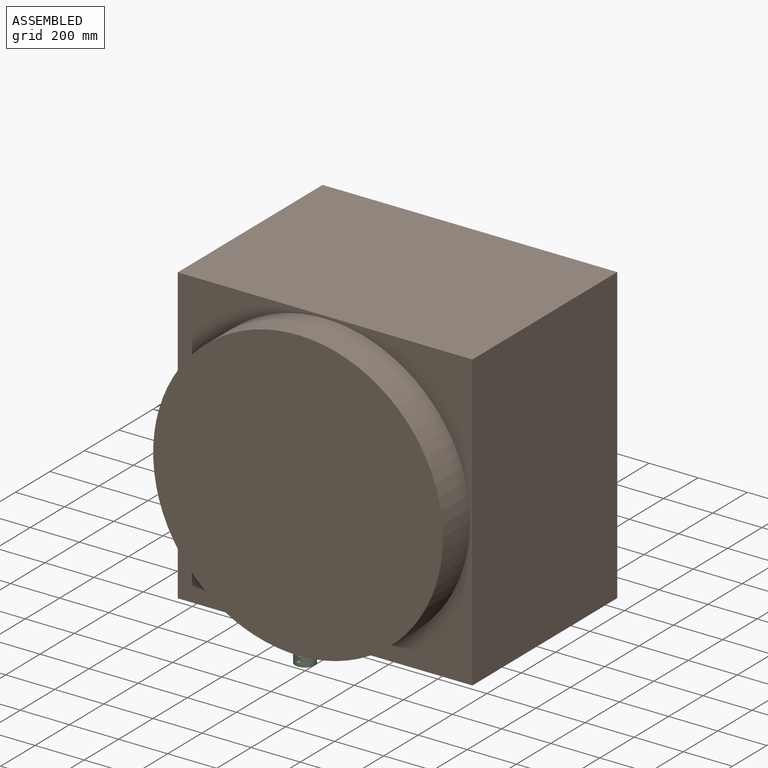
[diagram: assembled view]
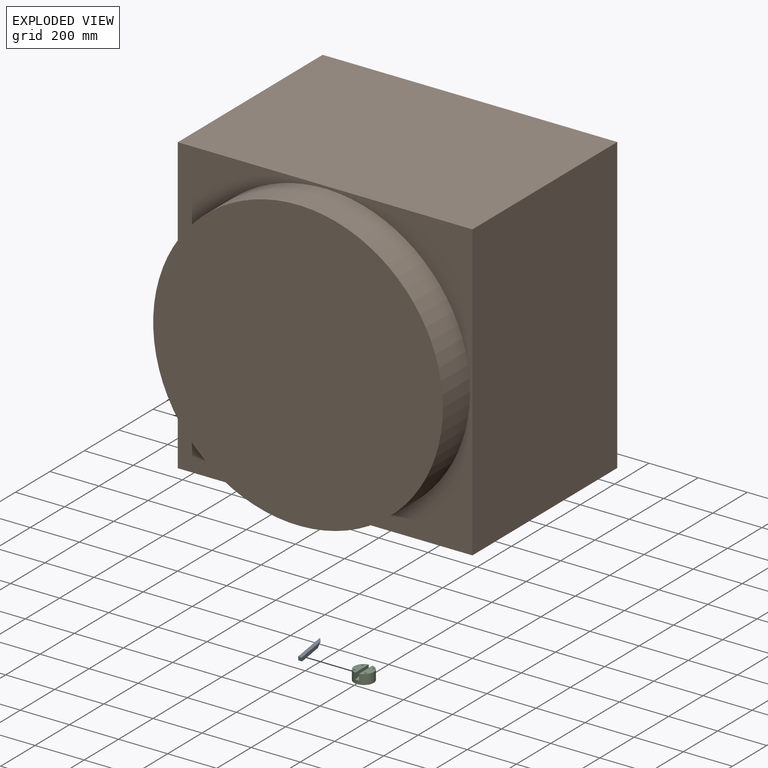
[diagram: exploded view]
GUIDED TOUR — MATED ASSEMBLY (Onshape document 03d0c8a4cb87887808d9288e, AutoMate assembly 03d0c8a4cb87887808d9288e_d7cd957b5241cafed65bce53_fe65963b3daaac415810025b_default)

This assembly has 3 components, labeled P0..P2 below (a component is one placed occurrence of a part; the same part can appear more than once), held together by 3 mates. A mate is a constraint between two components; its type names the relative motion it leaves free:
  PARALLEL — keeps the two listed directions parallel,
  PLANAR — leaves sliding in the plane through the listed point (normal = the listed direction) and rotation about that normal free.
Axis/direction vectors are unit vectors and 'through' points are millimeter coordinates, both in the assembly's world frame.

MATES
  1. PARALLEL "Parallel 1": P1 <-> P2, direction (0.000, 0.000, -1.000) through (12.36, 519.59, 21.56) mm
  2. PLANAR "Planar 2": P0 <-> P2, direction (-1.000, 0.000, 0.000) through (-7.90, 30.51, 13.53) mm
  3. PLANAR "Planar 1": P0 <-> P2, direction (0.000, 0.157, -0.988) through (-0.62, 22.67, 4.49) mm

ASSEMBLY ORDER
  1. P0 — the base component [order verified]
  2. P2 [order verified]
  3. P1 [order verified]
Order-tag legend:
  [order verified] — this step's position reverses a verified removal order: the component was checked to insert without passing through the ones already placed.

Of the 3 components, 3 carry the full construction recipe — the FeatureScript program that regenerates the part's solid from scratch; the rest are supplied as boundary geometry only.
Each toured component is shown spotlighted twice — in the assembled view, then in the exploded view, where a leader line traces a displaced component back to its assembled socket (saturated green if recipe-attached, orange if geometry-only; every other component desaturated gray) — followed by its recipe or geometry summary and the mates that hold it.
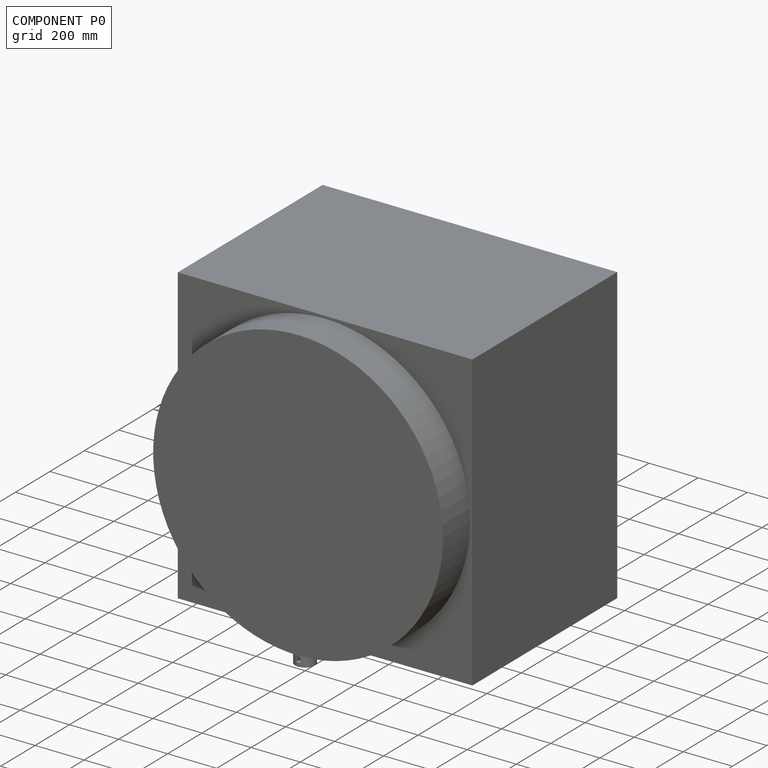
[diagram: component P0 — assembled]
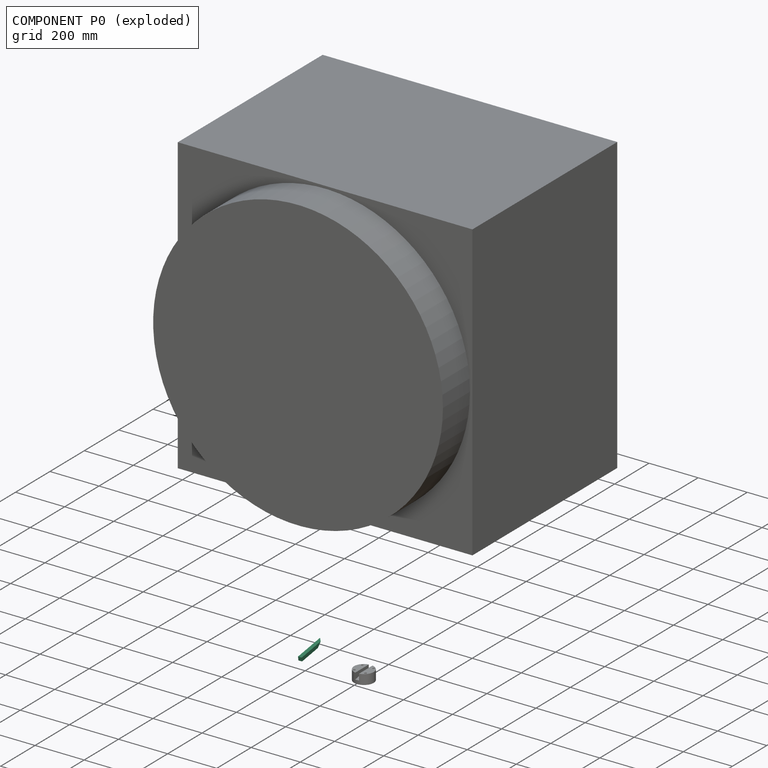
[diagram: component P0 — exploded]
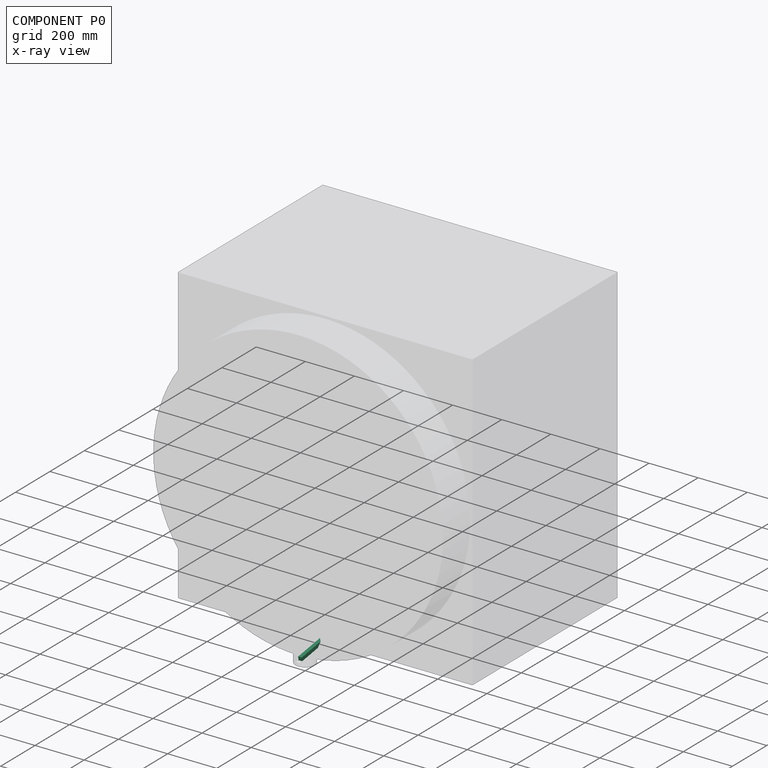
[diagram: component P0 — x-ray view]
COMPONENT P0 — recipe-attached (CADFS 00477355, mesh-verified: the recipe's output STEP matches this component's geometry to below the mesh-comparison resolution (tessellation chordal tolerance ~0.2 mm)).
Held by: PLANAR mate "Planar 2" to P2; PLANAR mate "Planar 1" to P2.
Construction recipe (FeatureScript — the CAD program that rebuilds this solid; sketch coordinates are in the units given by the * unit suffixes, e.g. mm):

FeatureScript 1511;
import(path : "onshape/std/geometry.fs", version : "1511.0");
import(path : "onshape/std/common.fs", version : "1511.0");
const mm = millimeter;
const VERTEX = EntityType.VERTEX;
const EDGE = EntityType.EDGE;
const FACE = EntityType.FACE;
const BODY = EntityType.BODY;
function v(x, y){return vector(x, y);}
function OD(order){return orderDisambiguation(order);}
function OSD(set){return originalSetDisambiguation(set);}
function TD(topology){return topologyDisambiguation(topology);}
function TDD(query){return trueDependencyDisambiguation(query);}
function sQuery(a, b, c) {return sketchEntityQuery(a, b, c);}

annotation { "Feature Type Name" : "Feature", "Feature Type Description" : "" }
export const myFeature = defineFeature(function(context is Context, id is Id, definition is map)
    precondition{}
    {
        {
            var Q0;
            Q0=qCreatedBy(makeId("Front.planeOp"),FACE);
            var sketch = newSketch(context, id + "F0", { "sketchPlane" : qUnion([Q0])});
            skLineSegment(sketch, "E0", {"start": v(-10.6, 0) * mm, "end": v(0, 10.6) * mm});
            skLineSegment(sketch, "E1", {"start": v(0, 10.6) * mm, "end": v(10.6, 0) * mm});
            skLineSegment(sketch, "E2", {"start": v(10.6, 0) * mm, "end": v(0, -10.6) * mm});
            skLineSegment(sketch, "E3", {"start": v(0, -10.6) * mm, "end": v(-10.6, 0) * mm});
            skSolve(sketch);
        }
        {
            var Q0;
            Q0 = qSketchRegion(id + "F0", true);
            extrude(context, id + "F1", {"entities" : qUnion([Q0]), "depth" : 130 * mm});
        }
        {
            var Q0;
            Q0=qCreatedBy(makeId("Right.planeOp"),FACE);
            var sketch = newSketch(context, id + "F2", { "sketchPlane" : qUnion([Q0])});
            skLineSegment(sketch, "E4", {"start": v(-130, -10.6) * mm, "end": v(-92.9, 10.82) * mm});
            skLineSegment(sketch, "E5", {"start": v(-92.9, 10.82) * mm, "end": v(-130, 10.82) * mm});
            skLineSegment(sketch, "E6", {"start": v(-130, 10.82) * mm, "end": v(-130, -10.6) * mm});
            skSolve(sketch);
        }
        {
            var Q0;
            Q0 = qSketchRegion(id + "F2", true);
            extrude(context, id + "F3", {"entities" : qUnion([Q0]), "operationType" : NewBodyOperationType.REMOVE, "endBound" : BoundingType.SYMMETRIC, "oppositeDirection" : true, "depth" : 25 * mm});
        }
    });
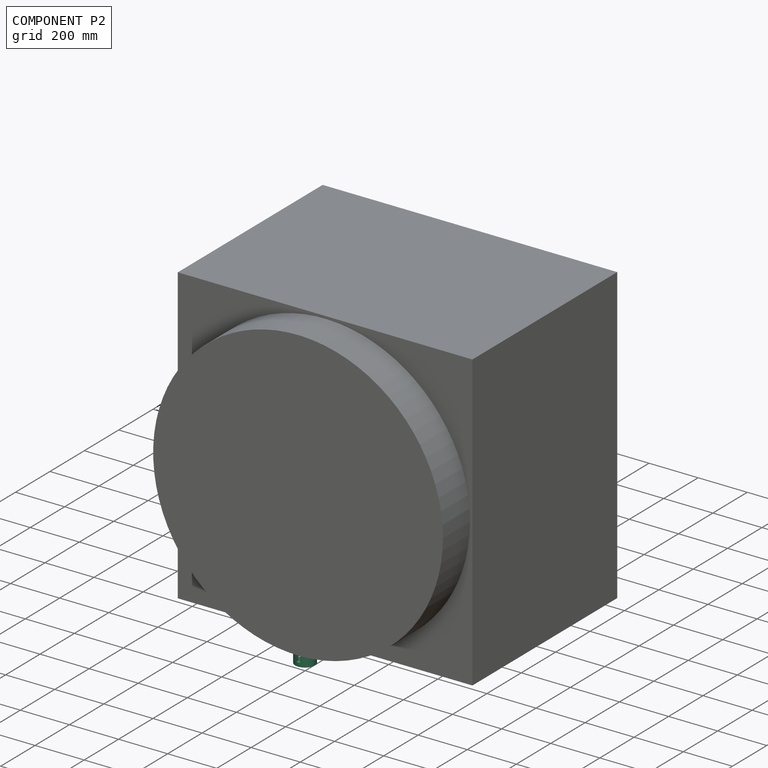
[diagram: component P2 — assembled]
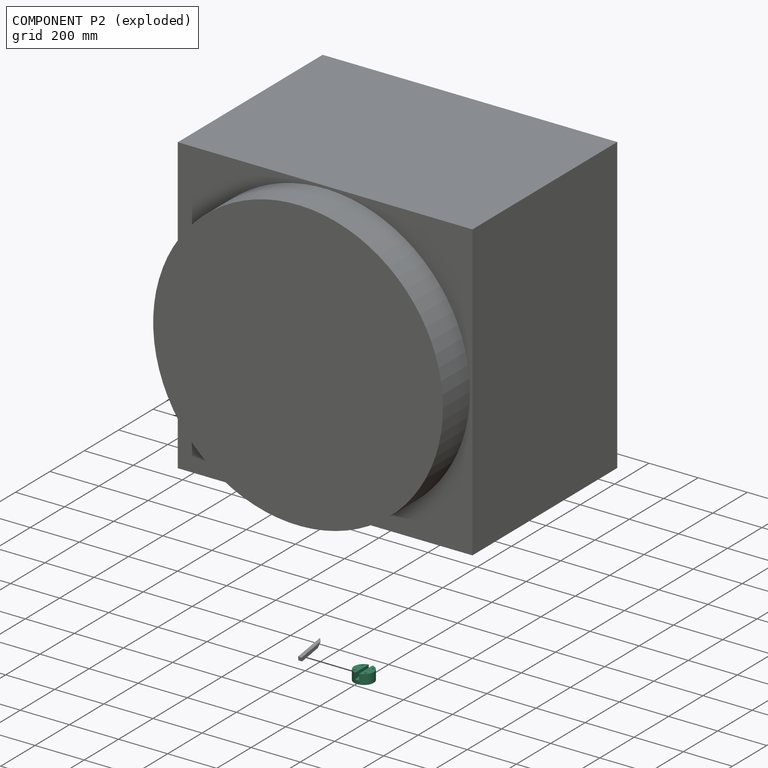
[diagram: component P2 — exploded]
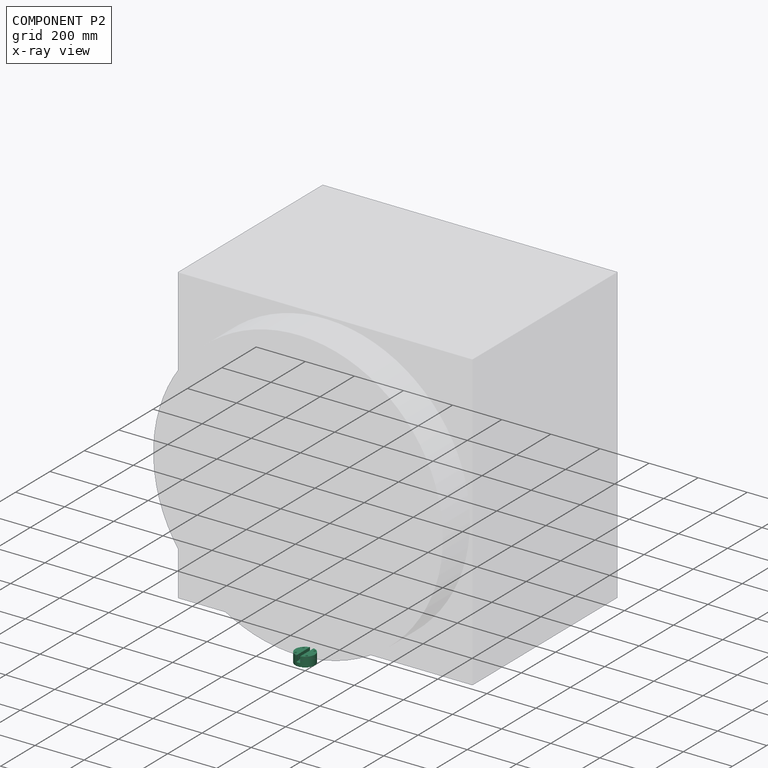
[diagram: component P2 — x-ray view]
COMPONENT P2 — recipe-attached (CADFS 00477224, mesh-verified: the recipe's output STEP matches this component's geometry to below the mesh-comparison resolution (tessellation chordal tolerance ~0.18 mm)).
Held by: PARALLEL mate "Parallel 1" to P1; PLANAR mate "Planar 2" to P0; PLANAR mate "Planar 1" to P0.
Construction recipe (FeatureScript — the CAD program that rebuilds this solid; sketch coordinates are in the units given by the * unit suffixes, e.g. mm):

FeatureScript 1511;
import(path : "onshape/std/geometry.fs", version : "1511.0");
import(path : "onshape/std/common.fs", version : "1511.0");
const mm = millimeter;
const VERTEX = EntityType.VERTEX;
const EDGE = EntityType.EDGE;
const FACE = EntityType.FACE;
const BODY = EntityType.BODY;
function v(x, y){return vector(x, y);}
function OD(order){return orderDisambiguation(order);}
function OSD(set){return originalSetDisambiguation(set);}
function TD(topology){return topologyDisambiguation(topology);}
function TDD(query){return trueDependencyDisambiguation(query);}
function sQuery(a, b, c) {return sketchEntityQuery(a, b, c);}

annotation { "Feature Type Name" : "Feature", "Feature Type Description" : "" }
export const myFeature = defineFeature(function(context is Context, id is Id, definition is map)
    precondition{}
    {
        {
            var Q0;
            Q0=qCreatedBy(makeId("Top.planeOp"),FACE);
            var sketch = newSketch(context, id + "F0", { "sketchPlane" : qUnion([Q0])});
            skCircle(sketch, "E0", {"center": v(0, 0) * mm, "radius": 40 * mm});
            skCircle(sketch, "E1", {"center": v(0, 0) * mm, "radius": 32.5 * mm, "construction": true});
            skLineSegment(sketch, "E2", {"start": v(-45.9, 45.9) * mm, "end": v(37.06, -37.06) * mm, "construction": true});
            skLineSegment(sketch, "E3", {"start": v(-46.49, -46.49) * mm, "end": v(56.1, 56.1) * mm, "construction": true});
            skCircle(sketch, "E4", {"center": v(-22.98, 22.98) * mm, "radius": 4.25 * mm});
            skCircle(sketch, "E5", {"center": v(22.98, 22.98) * mm, "radius": 4.25 * mm});
            skCircle(sketch, "E6", {"center": v(22.98, -22.98) * mm, "radius": 4.25 * mm});
            skCircle(sketch, "E7", {"center": v(-22.98, -22.98) * mm, "radius": 4.25 * mm});
            skSolve(sketch);
        }
        {
            var Q0;
            Q0=makeQuery(id+"F0.imprint","IMPRINT",FACE,{"disambiguationData":[TD([[makeQuery(id+"F0.imprint","IMPRINT",EDGE,{"derivedFrom":sQuery(id+"F0.wireOp",EDGE,"E0")}),1.0]])]});
            extrude(context, id + "F1", {"entities" : qUnion([Q0]), "depth" : 40 * mm});
        }
        {
            var Q0;
            Q0=makeQuery(id+"F1.opExtrude","CAP_FACE",FACE,{"disambiguationData":[OSD([sQuery(id+"F0.wireOp",EDGE,"E0"),sQuery(id+"F0.wireOp",EDGE,"E4"),sQuery(id+"F0.wireOp",EDGE,"E5"),sQuery(id+"F0.wireOp",EDGE,"E6"),sQuery(id+"F0.wireOp",EDGE,"E7")])],"isStart":false});
            var sketch = newSketch(context, id + "F2", { "sketchPlane" : qUnion([Q0])});
            skLineSegment(sketch, "E8.bottom", {"start": v(-7.5, 40) * mm, "end": v(7.5, 40) * mm});
            skLineSegment(sketch, "E8.top", {"start": v(-7.5, -40) * mm, "end": v(7.5, -40) * mm});
            skLineSegment(sketch, "E8.left", {"start": v(-7.5, 40) * mm, "end": v(-7.5, -40) * mm});
            skLineSegment(sketch, "E8.right", {"start": v(7.5, 40) * mm, "end": v(7.5, -40) * mm});
            skSolve(sketch);
        }
        {
            var Q0;
            Q0 = qSketchRegion(id + "F2", true);
            extrude(context, id + "F3", {"entities" : qUnion([Q0]), "operationType" : NewBodyOperationType.REMOVE, "oppositeDirection" : true, "depth" : 25 * mm});
        }
        {
            var Q0;
            Q0=makeQuery(id+"F3.boolean.opBoolean","COPY",FACE,{"derivedFrom":makeQuery(id+"F3.opExtrude","SWEPT_FACE",FACE,{"disambiguationData":[OSD([sQuery(id+"F2.wireOp",EDGE,"E8.left")])]})});
            var sketch = newSketch(context, id + "F4", { "sketchPlane" : qUnion([Q0])});
            skLineSegment(sketch, "E9", {"start": v(-39.3, 15) * mm, "end": v(39.3, 27.5) * mm});
            skLineSegment(sketch, "E10", {"start": v(39.3, 27.5) * mm, "end": v(39.3, 15) * mm});
            skLineSegment(sketch, "E11", {"start": v(39.3, 15) * mm, "end": v(-39.3, 15) * mm});
            skSolve(sketch);
        }
        {
            var Q0;
            Q0 = qSketchRegion(id + "F4", true);
            extrude(context, id + "F5", {"entities" : qUnion([Q0]), "operationType" : NewBodyOperationType.ADD, "depth" : 15 * mm});
        }
        {
            var Q0;
            Q0=makeQuery(id+"F5.boolean.opBoolean","SPLIT",FACE,{"disambiguationData":[TD([makeQuery(id+"F5.opExtrude","SWEPT_FACE",FACE,{"disambiguationData":[OSD([sQuery(id+"F4.wireOp",EDGE,"E10")])]})])],"derivedFrom":makeQuery(id+"F3.boolean.opBoolean","COPY",FACE,{"derivedFrom":makeQuery(id+"F3.opExtrude","CAP_FACE",FACE,{"disambiguationData":[OSD([sQuery(id+"F2.wireOp",EDGE,"E8.bottom"),sQuery(id+"F2.wireOp",EDGE,"E8.top"),sQuery(id+"F2.wireOp",EDGE,"E8.left"),sQuery(id+"F2.wireOp",EDGE,"E8.right")])],"isStart":false})})});
            var sketch = newSketch(context, id + "F6", { "sketchPlane" : qUnion([Q0])});
            skLineSegment(sketch, "E12.0", {"start": v(-7.5, 39.3) * mm, "end": v(7.5, 39.3) * mm});
            skArc(sketch, "E12.1", {"start": v(7.5, 39.3) * mm, "mid": v(0, 40) * mm, "end": v(-7.5, 39.3) * mm});
            skSolve(sketch);
        }
        {
            var Q0;
            Q0 = qSketchRegion(id + "F6", true);
            extrude(context, id + "F7", {"entities" : qUnion([Q0]), "operationType" : NewBodyOperationType.ADD, "depth" : 12.5 * mm});
        }
    });
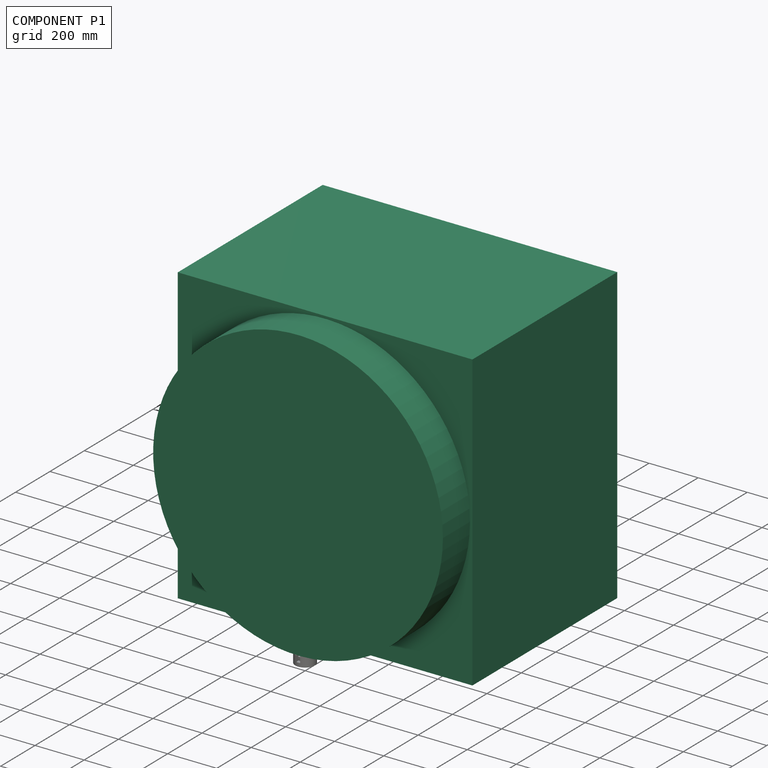
[diagram: component P1 — assembled]
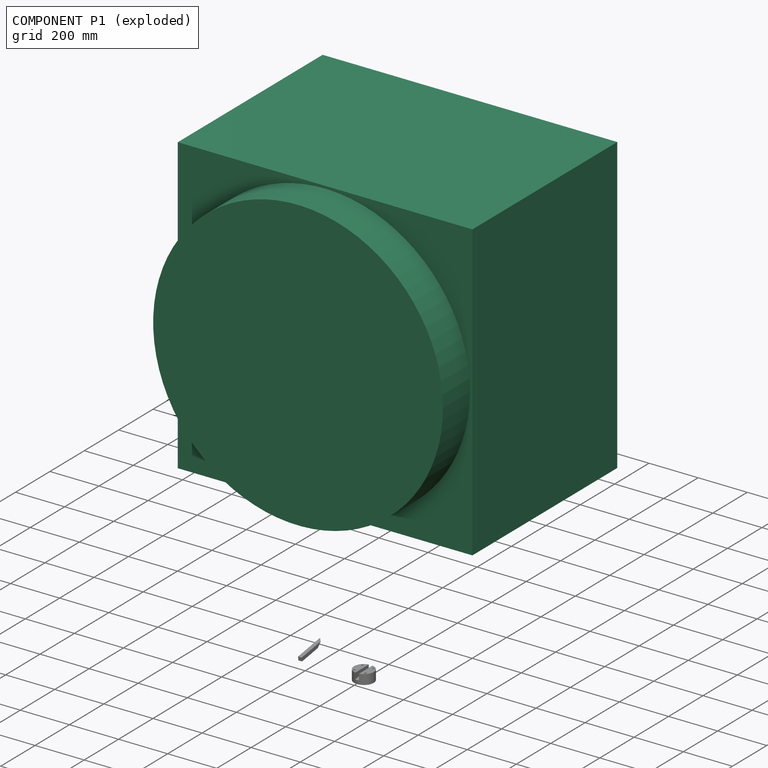
[diagram: component P1 — exploded]
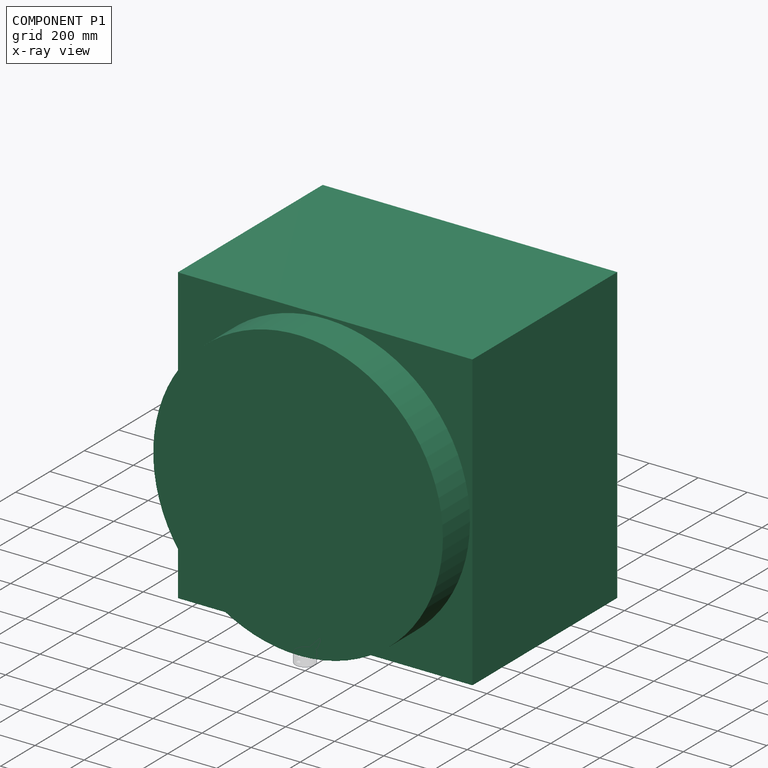
[diagram: component P1 — x-ray view]
COMPONENT P1 — recipe-attached (CADFS 00477384, mesh-verified: the recipe's output STEP matches this component's geometry to below the mesh-comparison resolution (tessellation chordal tolerance ~2.95 mm)).
Held by: PARALLEL mate "Parallel 1" to P2.
Construction recipe (FeatureScript — the CAD program that rebuilds this solid; sketch coordinates are in the units given by the * unit suffixes, e.g. mm):

FeatureScript 1511;
import(path : "onshape/std/geometry.fs", version : "1511.0");
import(path : "onshape/std/common.fs", version : "1511.0");
const mm = millimeter;
const VERTEX = EntityType.VERTEX;
const EDGE = EntityType.EDGE;
const FACE = EntityType.FACE;
const BODY = EntityType.BODY;
function v(x, y){return vector(x, y);}
function OD(order){return orderDisambiguation(order);}
function OSD(set){return originalSetDisambiguation(set);}
function TD(topology){return topologyDisambiguation(topology);}
function TDD(query){return trueDependencyDisambiguation(query);}
function sQuery(a, b, c) {return sketchEntityQuery(a, b, c);}

annotation { "Feature Type Name" : "Feature", "Feature Type Description" : "" }
export const myFeature = defineFeature(function(context is Context, id is Id, definition is map)
    precondition{}
    {
        {
            var Q0;
            Q0=qCreatedBy(makeId("Front.planeOp"),FACE);
            var sketch = newSketch(context, id + "F0", { "sketchPlane" : qUnion([Q0])});
            skLineSegment(sketch, "E0", {"start": v(-600, 0) * mm, "end": v(-600, 842.6) * mm});
            skLineSegment(sketch, "E1", {"start": v(-600, 842.6) * mm, "end": v(-590, 842.6) * mm});
            skLineSegment(sketch, "E2", {"start": v(-590, 842.6) * mm, "end": v(-590, 1000) * mm});
            skLineSegment(sketch, "E3", {"start": v(-590, 1000) * mm, "end": v(0, 1000) * mm});
            skLineSegment(sketch, "E4", {"start": v(0, 1000) * mm, "end": v(0, 0) * mm});
            skLineSegment(sketch, "E5", {"start": v(0, 0) * mm, "end": v(-600, 0) * mm});
            skLineSegment(sketch, "E6", {"start": v(0, 1180.6) * mm, "end": v(0, -205.9) * mm, "construction": true});
            skLineSegment(sketch, "E7", {"start": v(-590, 842.6) * mm, "end": v(0, 842.6) * mm});
            skSolve(sketch);
        }
        {
            var Q0;
            Q0 = qSketchRegion(id + "F0", true);
            var Q1;
            Q1=sQuery(id+"F0.wireOp",EDGE,"E6");
            revolve(context, id + "F1", {"entities" : qUnion([Q0]), "axis" : qUnion([Q1]), "revolveType" : RevolveType.FULL});
        }
        {
            var Q0;
            Q0=makeQuery(id+"F1.opRevolve","SWEPT_FACE",FACE,{"disambiguationData":[OSD([sQuery(id+"F0.wireOp",EDGE,"E5")])]});
            var sketch = newSketch(context, id + "F2", { "sketchPlane" : qUnion([Q0])});
            skLineSegment(sketch, "E8.bottom", {"start": v(600, -600) * mm, "end": v(-600, -600) * mm});
            skLineSegment(sketch, "E8.top", {"start": v(600, 600) * mm, "end": v(-600, 600) * mm});
            skLineSegment(sketch, "E8.left", {"start": v(600, -600) * mm, "end": v(600, 600) * mm});
            skLineSegment(sketch, "E8.right", {"start": v(-600, -600) * mm, "end": v(-600, 600) * mm});
            skPoint(sketch, "E8.middle", {"position": v(0, 0) * mm});
            skSolve(sketch);
        }
        {
            var Q0;
            Q0 = qSketchRegion(id + "F2", true);
            var Q1;
            Q1=makeQuery(id+"F1.opRevolve","SWEPT_FACE",FACE,{"disambiguationData":[OSD([sQuery(id+"F0.wireOp",EDGE,"E1")])]});
            extrude(context, id + "F3", {"entities" : qUnion([Q0]), "operationType" : NewBodyOperationType.ADD, "endBound" : BoundingType.UP_TO_SURFACE, "oppositeDirection" : true, "endBoundEntityFace" : qUnion([Q1]), "depth" : 650 * mm});
        }
    });
PROVENANCE & LICENSES
Assembly (occurrences, transforms, mates, per-part STEP geometry): AutoMate dataset, Zenodo record 7776208, CC0.
Construction recipes: CADFS (HuggingFace VladPyatov/CADFS, CC-BY-4.0, layered over the ABC dataset), FeatureScript reconstruction programs keyed by ABC model id.
Join: ABC meta listings map ABC model id -> Onshape documentId; within a shared document, parts are matched by geometric signature (bounding-box dims + volume at 0.1% relative tolerance, exact B-rep face/solid counts).
Verification: 3 of this assembly's 3 components carry a recipe attachment, and every attachment is mesh-verified: the CADFS STEP and the AutoMate member STEP were compared as meshes in their shared local frame (symmetric sampled-point-to-mesh distance); worst across the 3 attachments: below the mesh-comparison resolution (tessellation chordal tolerance ~2.95 mm) on a 1970 mm part.
Renders: orthographic iso camera (az 35 / el 25); the floor grid conveys scale (grid pitch printed in each image; no ruler). In the exploded view each component is displaced by its stored offset vector: the offsets alone carry the explosion direction (mate normal/axis signs are not orientation cues and do not encode it), and separation distances are assigned per mate-chain, not proportionally to assembly-order depth.
